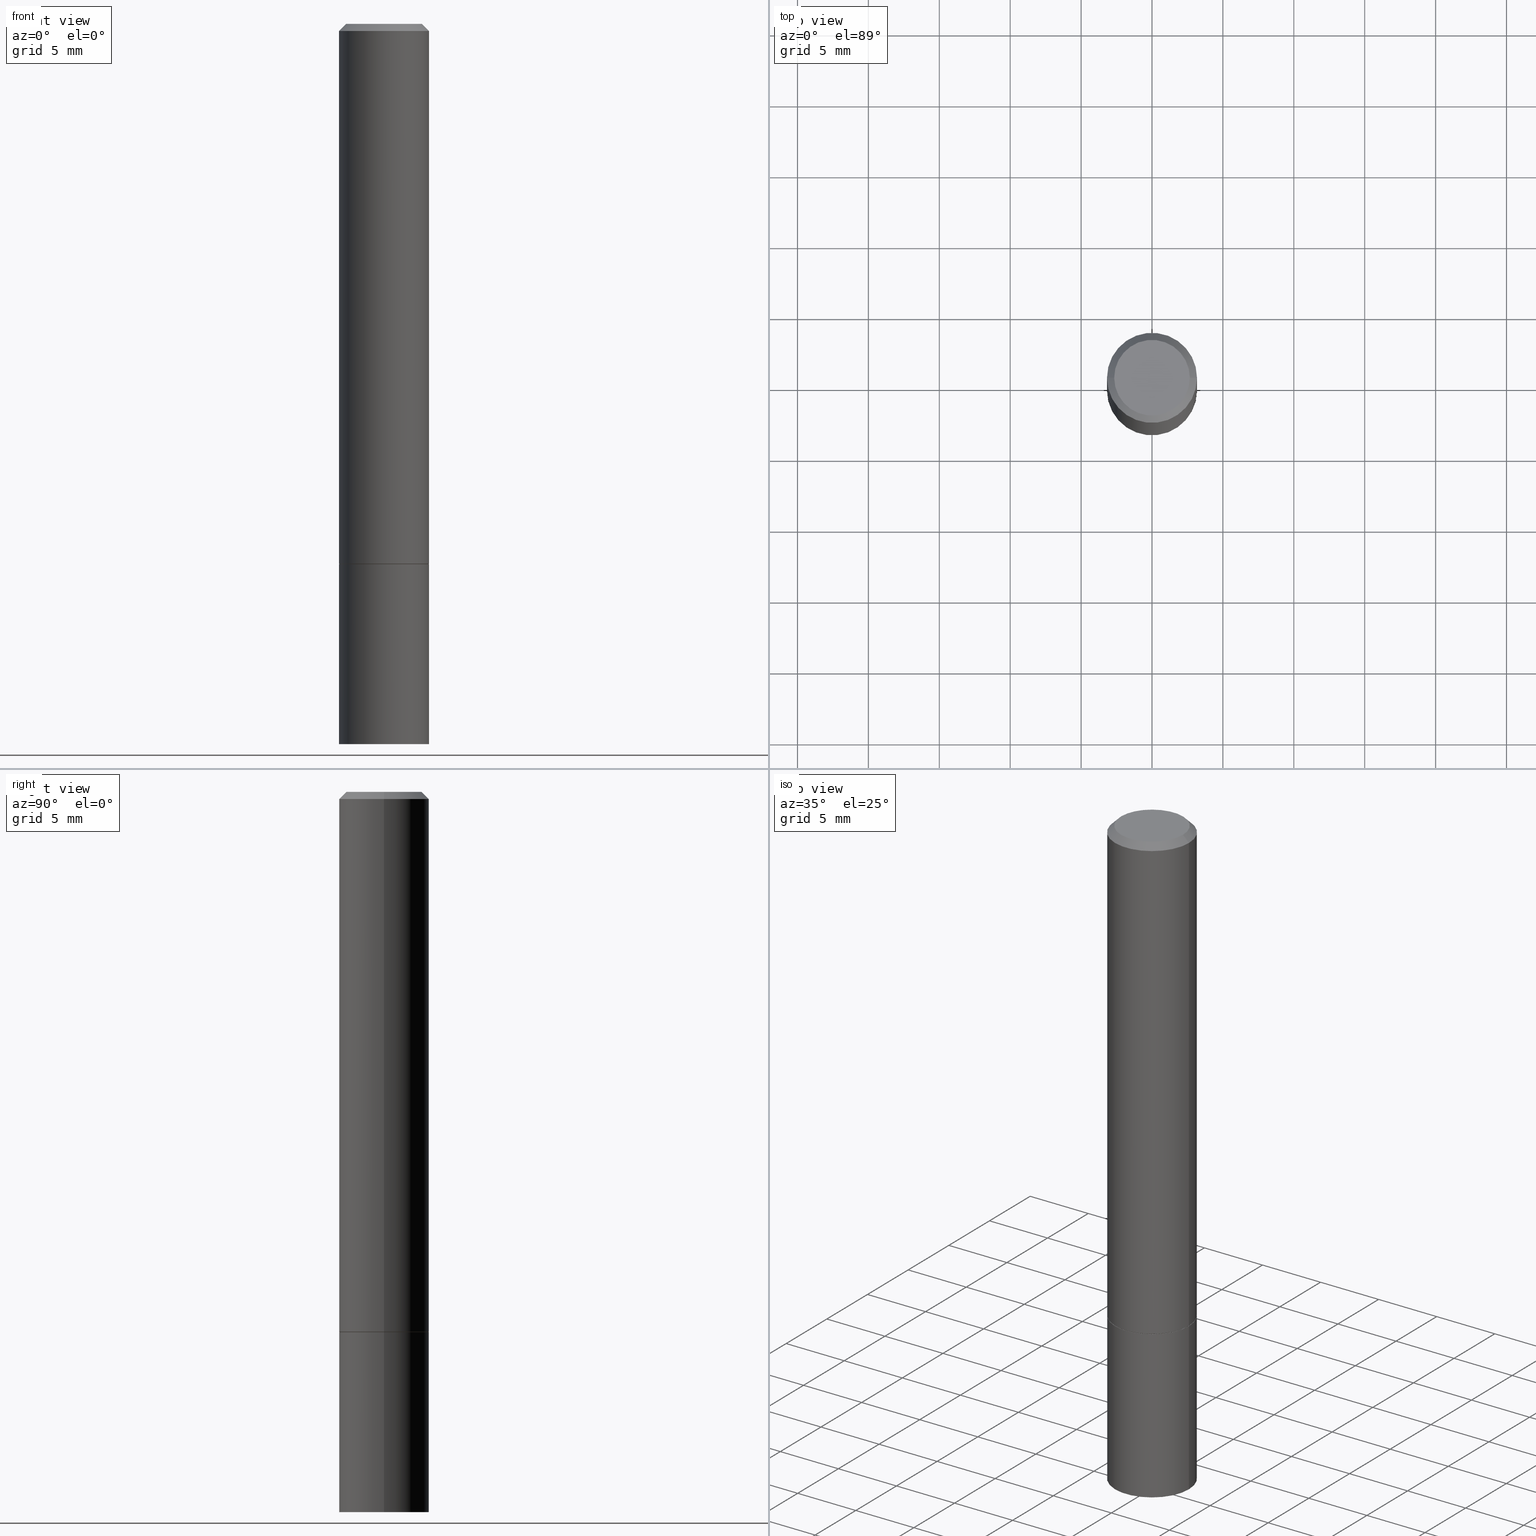
[diagram: canonical four-view strip — front | top / right | iso, engineering-drawing reading convention]
A machine part, canonical four-view strip (front | top / right | iso — engineering-drawing reading convention). The complete STEP part file that produces these views, byte-faithful:
ISO-10303-21;
HEADER;
FILE_DESCRIPTION (( 'STEP AP203' ),
    '1' );
FILE_NAME ('31756.STEP',
    '2024-02-27T13:30:16',
    ( '' ),
    ( '' ),
    'SwSTEP 2.0',
    'SolidWorks 2023',
    '' );
FILE_SCHEMA (( 'CONFIG_CONTROL_DESIGN' ));
ENDSEC;

DATA;
#1 = AXIS2_PLACEMENT_3D ( 'NONE', #285, #280, #168 ) ;
#2 = PERSON_AND_ORGANIZATION ( #38, #261 ) ;
#3 = DIRECTION ( 'NONE',  ( 1.000000000000000000, -6.982962677686270655E-15, 0.000000000000000000 ) ) ;
#4 = LINE ( 'NONE', #116, #185 ) ;
#5 = ADVANCED_FACE ( 'NONE', ( #355 ), #79, .T. ) ;
#6 = FACE_OUTER_BOUND ( 'NONE', #169, .T. ) ;
#7 = ORIENTED_EDGE ( 'NONE', *, *, #37, .T. ) ;
#8 = VECTOR ( 'NONE', #195, 39.37007874015748143 ) ;
#9 = VECTOR ( 'NONE', #136, 39.37007874015748143 ) ;
#10 = VERTEX_POINT ( 'NONE', #288 ) ;
#11 = PERSON_AND_ORGANIZATION_ROLE ( 'design_owner' ) ;
#12 = CIRCLE ( 'NONE', #238, 0.1049999999999998573 ) ;
#13 = AXIS2_PLACEMENT_3D ( 'NONE', #181, #222, #328 ) ;
#14 = DIRECTION ( 'NONE',  ( -1.000000000000000000, 6.982962677686265922E-15, -4.876176775795935793E-29 ) ) ;
#15 = DATE_AND_TIME ( #274, #360 ) ;
#16 = ORIENTED_EDGE ( 'NONE', *, *, #90, .F. ) ;
#17 = COORDINATED_UNIVERSAL_TIME_OFFSET ( 5, 0, .BEHIND. ) ;
#18 = CARTESIAN_POINT ( 'NONE',  ( 4.890937612370273194E-29, -6.982962677686291165E-15, -2.000000000000000000 ) ) ;
#19 = PLANE ( 'NONE',  #323 ) ;
#20 = APPROVAL_DATE_TIME ( #15, #240 ) ;
#21 = FACE_OUTER_BOUND ( 'NONE', #123, .T. ) ;
#22 = LINE ( 'NONE', #62, #9 ) ;
#23 = AXIS2_PLACEMENT_3D ( 'NONE', #277, #227, #250 ) ;
#24 = PERSON_AND_ORGANIZATION ( #38, #261 ) ;
#25 = CARTESIAN_POINT ( 'NONE',  ( 3.665757740471518732E-29, -5.233730526925875170E-15, -1.498999999999999666 ) ) ;
#26 =( LENGTH_UNIT ( ) NAMED_UNIT ( * ) SI_UNIT ( $, .METRE. ) );
#27 = PERSON_AND_ORGANIZATION_ROLE ( 'creator' ) ;
#28 = DIRECTION ( 'NONE',  ( -2.445468806185136597E-29, 3.491481338843145583E-15, 1.000000000000000000 ) ) ;
#29 = CIRCLE ( 'NONE', #70, 0.1250000000000000000 ) ;
#30 = DIRECTION ( 'NONE',  ( 1.000000000000000000, -6.982962677686265922E-15, 4.876176775795935232E-29 ) ) ;
#31 = CC_DESIGN_APPROVAL ( #300, ( #296 ) ) ;
#32 = EDGE_CURVE ( 'NONE', #10, #71, #108, .T. ) ;
#33 = DIRECTION ( 'NONE',  ( 2.438088387897960049E-29, -3.491481338843145188E-15, -1.000000000000000000 ) ) ;
#34 = MANIFOLD_SOLID_BREP ( 'Body-Move/Copy2[1]', #359 ) ;
#35 = DIRECTION ( 'NONE',  ( 1.000000000000000000, -6.982962677686270655E-15, 0.000000000000000000 ) ) ;
#36 = AXIS2_PLACEMENT_3D ( 'NONE', #41, #217, #184 ) ;
#37 = EDGE_CURVE ( 'NONE', #39, #329, #174, .T. ) ;
#38 = PERSON ( 'UNSPECIFIED', 'UNSPECIFIED', 'UNSPECIFIED', ('UNSPECIFIED'), ('UNSPECIFIED'), ('UNSPECIFIED') ) ;
#39 = VERTEX_POINT ( 'NONE', #237 ) ;
#40 = CC_DESIGN_PERSON_AND_ORGANIZATION_ASSIGNMENT ( #44, #305, ( #296 ) ) ;
#41 = CARTESIAN_POINT ( 'NONE',  ( 0.000000000000000000, 0.000000000000000000, 0.000000000000000000 ) ) ;
#42 = MECHANICAL_CONTEXT ( 'NONE', #83, 'mechanical' ) ;
#43 = CC_DESIGN_SECURITY_CLASSIFICATION ( #141, ( #243 ) ) ;
#44 = PERSON_AND_ORGANIZATION ( #38, #261 ) ;
#45 = CALENDAR_DATE ( 2024, 27, 2 ) ;
#46 = ORIENTED_EDGE ( 'NONE', *, *, #92, .T. ) ;
#47 = DIRECTION ( 'NONE',  ( -2.438088387897960049E-29, 3.491481338843145188E-15, 1.000000000000000000 ) ) ;
#48 = APPROVAL_STATUS ( 'not_yet_approved' ) ;
#49 = DIRECTION ( 'NONE',  ( 1.000000000000000000, -6.982962677686270655E-15, 0.000000000000000000 ) ) ;
#50 = CIRCLE ( 'NONE', #304, 0.1250000000000000000 ) ;
#51 = DIRECTION ( 'NONE',  ( -2.445468806185136597E-29, 3.491481338843145583E-15, 1.000000000000000000 ) ) ;
#52 = PERSON_AND_ORGANIZATION ( #38, #261 ) ;
#53 = LINE ( 'NONE', #163, #66 ) ;
#54 = CARTESIAN_POINT ( 'NONE',  ( 0.1250000000000000000, -6.110092342975501516E-15, -1.499999999999999778 ) ) ;
#55 = CYLINDRICAL_SURFACE ( 'NONE', #196, 0.1249999999999999167 ) ;
#56 = VERTEX_POINT ( 'NONE', #54 ) ;
#57 = CONICAL_SURFACE ( 'NONE', #267, 0.1239999999999999991, 0.7853981633975507526 ) ;
#58 = ADVANCED_FACE ( 'NONE', ( #251 ), #322, .T. ) ;
#59 = APPROVAL_STATUS ( 'not_yet_approved' ) ;
#60 = ORIENTED_EDGE ( 'NONE', *, *, #106, .T. ) ;
#61 = CARTESIAN_POINT ( 'NONE',  ( 0.1249999999999998335, -9.273918764983031658E-16, -0.02000000000000002470 ) ) ;
#62 = CARTESIAN_POINT ( 'NONE',  ( 0.1250000000000000000, -8.728703347107833388E-16, 6.095220969744919741E-30 ) ) ;
#63 = DIRECTION ( 'NONE',  ( -2.445468806185136597E-29, 3.491481338843145583E-15, 1.000000000000000000 ) ) ;
#64 = PRODUCT ( '31756', '31756', '', ( #42 ) ) ;
#65 = DIRECTION ( 'NONE',  ( 1.000000000000000000, -6.982962677686265922E-15, 4.876176775795935232E-29 ) ) ;
#66 = VECTOR ( 'NONE', #279, 39.37007874015748143 ) ;
#67 = EDGE_CURVE ( 'NONE', #186, #349, #313, .T. ) ;
#68 = CC_DESIGN_PERSON_AND_ORGANIZATION_ASSIGNMENT ( #24, #283, ( #243 ) ) ;
#69 = DIRECTION ( 'NONE',  ( 1.000000000000000000, -6.982962677686266711E-15, 0.000000000000000000 ) ) ;
#70 = AXIS2_PLACEMENT_3D ( 'NONE', #307, #81, #78 ) ;
#71 = VERTEX_POINT ( 'NONE', #204 ) ;
#72 =( NAMED_UNIT ( * ) PLANE_ANGLE_UNIT ( ) SI_UNIT ( $, .RADIAN. ) );
#73 = APPROVAL_STATUS ( 'not_yet_approved' ) ;
#74 = ORIENTED_EDGE ( 'NONE', *, *, #76, .T. ) ;
#75 = AXIS2_PLACEMENT_3D ( 'NONE', #317, #63, #3 ) ;
#76 = EDGE_CURVE ( 'NONE', #10, #39, #159, .T. ) ;
#77 = FACE_OUTER_BOUND ( 'NONE', #363, .T. ) ;
#78 = DIRECTION ( 'NONE',  ( 1.000000000000000000, -6.982962677686270655E-15, 0.000000000000000000 ) ) ;
#79 = CYLINDRICAL_SURFACE ( 'NONE', #298, 0.1250000000000000000 ) ;
#80 = VECTOR ( 'NONE', #133, 39.37007874015748143 ) ;
#81 = DIRECTION ( 'NONE',  ( -2.445468806185136597E-29, 3.491481338843145583E-15, 1.000000000000000000 ) ) ;
#82 = FACE_OUTER_BOUND ( 'NONE', #132, .T. ) ;
#83 = APPLICATION_CONTEXT ( 'configuration controlled 3d designs of mechanical parts and assemblies' ) ;
#84 = FACE_OUTER_BOUND ( 'NONE', #202, .T. ) ;
#85 = ORIENTED_EDGE ( 'NONE', *, *, #92, .F. ) ;
#86 = ADVANCED_FACE ( 'NONE', ( #21 ), #306, .T. ) ;
#87 = DIRECTION ( 'NONE',  ( 1.000000000000000000, -6.982962677686270655E-15, 0.000000000000000000 ) ) ;
#88 = ORIENTED_EDGE ( 'NONE', *, *, #67, .T. ) ;
#89 = CARTESIAN_POINT ( 'NONE',  ( 0.000000000000000000, 0.000000000000000000, 0.000000000000000000 ) ) ;
#90 = EDGE_CURVE ( 'NONE', #258, #346, #53, .T. ) ;
#91 = DIRECTION ( 'NONE',  ( -2.445468806185136597E-29, 3.491481338843145583E-15, 1.000000000000000000 ) ) ;
#92 = EDGE_CURVE ( 'NONE', #349, #138, #198, .T. ) ;
#93 = CARTESIAN_POINT ( 'NONE',  ( 0.000000000000000000, 0.000000000000000000, 0.000000000000000000 ) ) ;
#94 = ADVANCED_FACE ( 'NONE', ( #82 ), #272, .T. ) ;
#95 = EDGE_CURVE ( 'NONE', #303, #258, #242, .T. ) ;
#96 = ORIENTED_EDGE ( 'NONE', *, *, #119, .T. ) ;
#97 = APPROVAL_ROLE ( '' ) ;
#98 = ORIENTED_EDGE ( 'NONE', *, *, #95, .T. ) ;
#99 = ADVANCED_BREP_SHAPE_REPRESENTATION ( '31756', ( #34, #150, #13 ), #214 ) ;
#100 = ORIENTED_EDGE ( 'NONE', *, *, #324, .T. ) ;
#101 = DIRECTION ( 'NONE',  ( -1.000000000000000000, 6.982962677686265922E-15, -4.876176775795935793E-29 ) ) ;
#102 =( NAMED_UNIT ( * ) SI_UNIT ( $, .STERADIAN. ) SOLID_ANGLE_UNIT ( ) );
#103 = APPLICATION_PROTOCOL_DEFINITION ( 'international standard', 'config_control_design', 1994, #187 ) ;
#104 = DIRECTION ( 'NONE',  ( 1.000000000000000000, -6.982962677686270655E-15, 0.000000000000000000 ) ) ;
#105 = CARTESIAN_POINT ( 'NONE',  ( 3.668203209277704335E-29, -5.237222008264717388E-15, -1.499999999999999778 ) ) ;
#106 = EDGE_CURVE ( 'NONE', #232, #346, #287, .T. ) ;
#107 = DIRECTION ( 'NONE',  ( -2.445468806185136597E-29, 3.491481338843145583E-15, 1.000000000000000000 ) ) ;
#108 = CIRCLE ( 'NONE', #333, 0.1239999999999999991 ) ;
#109 = CONICAL_SURFACE ( 'NONE', #321, 0.1249999999999998335, 0.7853981633974471688 ) ;
#110 = DIRECTION ( 'NONE',  ( 0.7071067811866199593, -2.468850131083015945E-15, 0.7071067811864750752 ) ) ;
#111 = ORIENTED_EDGE ( 'NONE', *, *, #95, .F. ) ;
#112 = CARTESIAN_POINT ( 'NONE',  ( 3.668203209277703774E-29, -5.237222008264716599E-15, -1.499999999999999556 ) ) ;
#113 = ORIENTED_EDGE ( 'NONE', *, *, #226, .T. ) ;
#114 = CC_DESIGN_APPROVAL ( #240, ( #243 ) ) ;
#115 = FACE_OUTER_BOUND ( 'NONE', #350, .T. ) ;
#116 = CARTESIAN_POINT ( 'NONE',  ( 0.1249999999999999167, -8.728703347107827472E-16, 6.095220969744915537E-30 ) ) ;
#117 = CC_DESIGN_APPROVAL ( #126, ( #141 ) ) ;
#118 = DIRECTION ( 'NONE',  ( -1.000000000000000000, 6.982962677686266711E-15, 0.000000000000000000 ) ) ;
#119 = EDGE_CURVE ( 'NONE', #349, #186, #320, .T. ) ;
#120 = DESIGN_CONTEXT ( 'detailed design', #187, 'design' ) ;
#121 = ORIENTED_EDGE ( 'NONE', *, *, #226, .F. ) ;
#122 = CYLINDRICAL_SURFACE ( 'NONE', #36, 0.1249999999999999167 ) ;
#123 = EDGE_LOOP ( 'NONE', ( #88, #46, #188, #165 ) ) ;
#124 = ADVANCED_FACE ( 'NONE', ( #176 ), #57, .T. ) ;
#125 = ORIENTED_EDGE ( 'NONE', *, *, #352, .T. ) ;
#126 = APPROVAL ( #59, 'UNSPECIFIED' ) ;
#127 = ORIENTED_EDGE ( 'NONE', *, *, #153, .T. ) ;
#128 = DATE_AND_TIME ( #218, #152 ) ;
#129 = DIRECTION ( 'NONE',  ( -2.445468806185136597E-29, 3.491481338843145583E-15, 1.000000000000000000 ) ) ;
#130 = CARTESIAN_POINT ( 'NONE',  ( 3.668203209277703774E-29, -5.237222008264716599E-15, -1.499999999999999556 ) ) ;
#131 = PLANE ( 'NONE',  #347 ) ;
#132 = EDGE_LOOP ( 'NONE', ( #245, #301, #366, #100 ) ) ;
#133 = DIRECTION ( 'NONE',  ( 0.7071067811865466846, -7.319954787623252890E-15, -0.7071067811865483499 ) ) ;
#134 = DIRECTION ( 'NONE',  ( 1.000000000000000000, -6.982962677686265922E-15, 4.876176775795935793E-29 ) ) ;
#135 = CARTESIAN_POINT ( 'NONE',  ( -0.1239999999999999991, -4.356149015922192375E-15, -1.499999999999999556 ) ) ;
#136 = DIRECTION ( 'NONE',  ( -2.445468806185136877E-29, 3.491481338843145188E-15, 1.000000000000000000 ) ) ;
#137 = DATE_AND_TIME ( #236, #327 ) ;
#138 = VERTEX_POINT ( 'NONE', #270 ) ;
#139 = PERSON_AND_ORGANIZATION ( #38, #261 ) ;
#140 = DIRECTION ( 'NONE',  ( 1.000000000000000000, -6.982962677686270655E-15, 0.000000000000000000 ) ) ;
#141 = SECURITY_CLASSIFICATION ( '', '', #260 ) ;
#142 = PRODUCT_RELATED_PRODUCT_CATEGORY ( 'detail', '', ( #64 ) ) ;
#143 = CARTESIAN_POINT ( 'NONE',  ( 3.668203209277703774E-29, -5.237222008264716599E-15, -1.499999999999999556 ) ) ;
#144 = UNCERTAINTY_MEASURE_WITH_UNIT (LENGTH_MEASURE( 1.000000000000000082E-05 ), #248, 'distance_accuracy_value', 'NONE');
#145 = AXIS2_PLACEMENT_3D ( 'NONE', #18, #337, #87 ) ;
#146 = CARTESIAN_POINT ( 'NONE',  ( 4.890937612370279289E-31, -6.982962677686299005E-17, -0.02000000000000002470 ) ) ;
#147 = DIMENSIONAL_EXPONENTS ( 1.000000000000000000, 0.000000000000000000, 0.000000000000000000, 0.000000000000000000, 0.000000000000000000, 0.000000000000000000, 0.000000000000000000 ) ;
#148 = ORIENTED_EDGE ( 'NONE', *, *, #348, .T. ) ;
#149 = ADVANCED_FACE ( 'NONE', ( #6 ), #122, .T. ) ;
#150 = MANIFOLD_SOLID_BREP ( 'Body-Move/Copy2[2]', #254 ) ;
#151 = PERSON_AND_ORGANIZATION ( #38, #261 ) ;
#152 = LOCAL_TIME ( 8, 30, 16.00000000000000000, #193 ) ;
#153 = EDGE_CURVE ( 'NONE', #258, #303, #12, .T. ) ;
#154 = APPROVAL_ROLE ( '' ) ;
#155 = EDGE_CURVE ( 'NONE', #138, #56, #29, .T. ) ;
#156 = DATE_AND_TIME ( #45, #273 ) ;
#157 = ORIENTED_EDGE ( 'NONE', *, *, #155, .F. ) ;
#158 = COORDINATED_UNIVERSAL_TIME_OFFSET ( 5, 0, .BEHIND. ) ;
#159 = LINE ( 'NONE', #135, #8 ) ;
#160 = AXIS2_PLACEMENT_3D ( 'NONE', #319, #212, #69 ) ;
#161 = AXIS2_PLACEMENT_3D ( 'NONE', #293, #33, #101 ) ;
#162 = DIRECTION ( 'NONE',  ( 1.000000000000000000, -6.982962677686266711E-15, 4.876176775795935793E-29 ) ) ;
#163 = CARTESIAN_POINT ( 'NONE',  ( -0.1249999999999998335, 8.030407079339191532E-16, -0.02000000000000002470 ) ) ;
#164 = COORDINATED_UNIVERSAL_TIME_OFFSET ( 5, 0, .BEHIND. ) ;
#165 = ORIENTED_EDGE ( 'NONE', *, *, #361, .F. ) ;
#166 = DIRECTION ( 'NONE',  ( -1.000000000000000000, 6.982962677686266711E-15, 0.000000000000000000 ) ) ;
#167 = DIRECTION ( 'NONE',  ( 1.000000000000000000, -6.982962677686266711E-15, 4.876176775795935793E-29 ) ) ;
#168 = DIRECTION ( 'NONE',  ( 1.000000000000000000, -6.982962677686266711E-15, 0.000000000000000000 ) ) ;
#169 = EDGE_LOOP ( 'NONE', ( #332, #7, #331, #351 ) ) ;
#170 = LENGTH_MEASURE_WITH_UNIT ( LENGTH_MEASURE( 0.02539999999999999897 ), #26 );
#171 = ADVANCED_FACE ( 'NONE', ( #282 ), #334, .F. ) ;
#172 = DIRECTION ( 'NONE',  ( -2.445468806185136597E-29, 3.491481338843145583E-15, 1.000000000000000000 ) ) ;
#173 = CARTESIAN_POINT ( 'NONE',  ( 3.665757740471518732E-29, -5.233730526925875170E-15, -1.498999999999999666 ) ) ;
#174 = CIRCLE ( 'NONE', #326, 0.1250000000000000000 ) ;
#175 = APPROVAL_PERSON_ORGANIZATION ( #139, #126, #203 ) ;
#176 = FACE_OUTER_BOUND ( 'NONE', #314, .T. ) ;
#177 = AXIS2_PLACEMENT_3D ( 'NONE', #146, #268, #118 ) ;
#178 = EDGE_CURVE ( 'NONE', #56, #138, #50, .T. ) ;
#179 = ADVANCED_FACE ( 'NONE', ( #330 ), #55, .T. ) ;
#180 = ORIENTED_EDGE ( 'NONE', *, *, #67, .F. ) ;
#181 = CARTESIAN_POINT ( 'NONE',  ( 0.000000000000000000, 0.000000000000000000, 0.000000000000000000 ) ) ;
#182 = ORIENTED_EDGE ( 'NONE', *, *, #106, .F. ) ;
#183 = CC_DESIGN_DATE_AND_TIME_ASSIGNMENT ( #156, #276, ( #296 ) ) ;
#184 = DIRECTION ( 'NONE',  ( 1.000000000000000000, -6.982962677686266711E-15, 4.876176775795935793E-29 ) ) ;
#185 = VECTOR ( 'NONE', #210, 39.37007874015748143 ) ;
#186 = VERTEX_POINT ( 'NONE', #278 ) ;
#187 = APPLICATION_CONTEXT ( 'configuration controlled 3d designs of mechanical parts and assemblies' ) ;
#188 = ORIENTED_EDGE ( 'NONE', *, *, #178, .F. ) ;
#189 = DIRECTION ( 'NONE',  ( 2.438088387897960049E-29, -3.491481338843145188E-15, -1.000000000000000000 ) ) ;
#190 = APPLICATION_PROTOCOL_DEFINITION ( 'international standard', 'config_control_design', 1994, #83 ) ;
#191 = EDGE_LOOP ( 'NONE', ( #127, #98 ) ) ;
#192 = CARTESIAN_POINT ( 'NONE',  ( 7.332110811570569396E-16, 0.1049999999999998573, -3.666055405785298010E-16 ) ) ;
#193 = COORDINATED_UNIVERSAL_TIME_OFFSET ( 5, 0, .BEHIND. ) ;
#194 = ADVANCED_FACE ( 'NONE', ( #77 ), #131, .T. ) ;
#195 = DIRECTION ( 'NONE',  ( -0.7071067811866199593, 7.493145998870616062E-15, 0.7071067811864750752 ) ) ;
#196 = AXIS2_PLACEMENT_3D ( 'NONE', #89, #129, #162 ) ;
#197 = CIRCLE ( 'NONE', #345, 0.1239999999999999991 ) ;
#198 = LINE ( 'NONE', #335, #228 ) ;
#199 = ADVANCED_FACE ( 'NONE', ( #115 ), #19, .F. ) ;
#200 = CARTESIAN_POINT ( 'NONE',  ( 4.890937612370279289E-31, -6.982962677686299005E-17, -0.02000000000000002470 ) ) ;
#201 = COORDINATED_UNIVERSAL_TIME_OFFSET ( 5, 0, .BEHIND. ) ;
#202 = EDGE_LOOP ( 'NONE', ( #111, #148, #60, #16 ) ) ;
#203 = APPROVAL_ROLE ( '' ) ;
#204 = CARTESIAN_POINT ( 'NONE',  ( 0.1239999999999999991, -6.103109380297813924E-15, -1.499999999999999556 ) ) ;
#205 = CIRCLE ( 'NONE', #219, 0.1250000000000000000 ) ;
#206 = ORIENTED_EDGE ( 'NONE', *, *, #309, .F. ) ;
#207 = CARTESIAN_POINT ( 'NONE',  ( 0.1250000000000000000, -6.106600861636658508E-15, -1.498999999999999666 ) ) ;
#208 = PERSON_AND_ORGANIZATION ( #38, #261 ) ;
#209 = PLANE ( 'NONE',  #161 ) ;
#210 = DIRECTION ( 'NONE',  ( -2.445468806185136877E-29, 3.491481338843145188E-15, 1.000000000000000000 ) ) ;
#211 = LOCAL_TIME ( 8, 30, 16.00000000000000000, #201 ) ;
#212 = DIRECTION ( 'NONE',  ( -2.445468806185136597E-29, 3.491481338843145583E-15, 1.000000000000000000 ) ) ;
#213 = CC_DESIGN_DATE_AND_TIME_ASSIGNMENT ( #137, #362, ( #141 ) ) ;
#214 =( GEOMETRIC_REPRESENTATION_CONTEXT ( 3 ) GLOBAL_UNCERTAINTY_ASSIGNED_CONTEXT ( ( #144 ) ) GLOBAL_UNIT_ASSIGNED_CONTEXT ( ( #248, #72, #102 ) ) REPRESENTATION_CONTEXT ( 'NONE', 'WORKASPACE' ) );
#215 = ORIENTED_EDGE ( 'NONE', *, *, #76, .F. ) ;
#216 = CC_DESIGN_PERSON_AND_ORGANIZATION_ASSIGNMENT ( #2, #340, ( #141 ) ) ;
#217 = DIRECTION ( 'NONE',  ( -2.445468806185136597E-29, 3.491481338843145583E-15, 1.000000000000000000 ) ) ;
#218 = CALENDAR_DATE ( 2024, 27, 2 ) ;
#219 = AXIS2_PLACEMENT_3D ( 'NONE', #173, #286, #262 ) ;
#220 = EDGE_LOOP ( 'NONE', ( #338, #358 ) ) ;
#221 = DIRECTION ( 'NONE',  ( 1.000000000000000000, -6.982962677686270655E-15, 0.000000000000000000 ) ) ;
#222 = DIRECTION ( 'NONE',  ( 0.000000000000000000, 0.000000000000000000, 1.000000000000000000 ) ) ;
#223 = PERSON_AND_ORGANIZATION ( #38, #261 ) ;
#224 = ORIENTED_EDGE ( 'NONE', *, *, #309, .T. ) ;
#225 = DIRECTION ( 'NONE',  ( 1.000000000000000000, -6.982962677686270655E-15, 0.000000000000000000 ) ) ;
#226 = EDGE_CURVE ( 'NONE', #71, #329, #354, .T. ) ;
#227 = DIRECTION ( 'NONE',  ( -2.445468806185136597E-29, 3.491481338843145583E-15, 1.000000000000000000 ) ) ;
#228 = VECTOR ( 'NONE', #255, 39.37007874015748143 ) ;
#229 = APPROVAL_PERSON_ORGANIZATION ( #223, #300, #97 ) ;
#230 = CARTESIAN_POINT ( 'NONE',  ( 0.1249999999999998335, -9.273918764983031658E-16, -0.02000000000000002470 ) ) ;
#231 = CALENDAR_DATE ( 2024, 27, 2 ) ;
#232 = VERTEX_POINT ( 'NONE', #230 ) ;
#233 = ADVANCED_FACE ( 'NONE', ( #84 ), #109, .T. ) ;
#234 = APPROVAL_DATE_TIME ( #311, #126 ) ;
#235 = DIRECTION ( 'NONE',  ( -2.445468806185136597E-29, 3.491481338843145583E-15, 1.000000000000000000 ) ) ;
#236 = CALENDAR_DATE ( 2024, 27, 2 ) ;
#237 = CARTESIAN_POINT ( 'NONE',  ( -0.1250000000000000000, -1.763601657151241635E-15, -1.498999999999999666 ) ) ;
#238 = AXIS2_PLACEMENT_3D ( 'NONE', #299, #318, #65 ) ;
#239 = CARTESIAN_POINT ( 'NONE',  ( -0.1049999999999998573, 7.681258945454880957E-16, -5.249639473182158869E-30 ) ) ;
#240 = APPROVAL ( #73, 'UNSPECIFIED' ) ;
#241 = CARTESIAN_POINT ( 'NONE',  ( 0.1049999999999998573, -8.238720831321564811E-16, 5.444276250344142358E-30 ) ) ;
#242 = CIRCLE ( 'NONE', #353, 0.1049999999999998573 ) ;
#243 = PRODUCT_DEFINITION_FORMATION_WITH_SPECIFIED_SOURCE ( 'ANY', '', #64, .NOT_KNOWN. ) ;
#244 = EDGE_CURVE ( 'NONE', #329, #39, #205, .T. ) ;
#245 = ORIENTED_EDGE ( 'NONE', *, *, #348, .F. ) ;
#246 = ORIENTED_EDGE ( 'NONE', *, *, #32, .F. ) ;
#247 = ORIENTED_EDGE ( 'NONE', *, *, #32, .T. ) ;
#248 =( CONVERSION_BASED_UNIT ( 'INCH', #170 ) LENGTH_UNIT ( ) NAMED_UNIT ( #147 ) );
#249 = CARTESIAN_POINT ( 'NONE',  ( 8.728703347108321496E-16, 0.1249999999999930195, -2.000000000000000444 ) ) ;
#250 = DIRECTION ( 'NONE',  ( 1.000000000000000000, -6.982962677686266711E-15, 4.876176775795935793E-29 ) ) ;
#251 = FACE_OUTER_BOUND ( 'NONE', #269, .T. ) ;
#252 = CARTESIAN_POINT ( 'NONE',  ( -0.1249999999999999167, 8.881784197001246407E-16, -6.148668862818628023E-30 ) ) ;
#253 = CARTESIAN_POINT ( 'NONE',  ( 0.1239999999999999991, -6.103109380297813924E-15, -1.499999999999999556 ) ) ;
#254 = CLOSED_SHELL ( 'NONE', ( #124, #179, #233, #94, #149, #58, #199, #171 ) ) ;
#255 = DIRECTION ( 'NONE',  ( -2.445468806185136877E-29, 3.491481338843145188E-15, 1.000000000000000000 ) ) ;
#256 = CARTESIAN_POINT ( 'NONE',  ( -0.1250000000000000000, -5.221913923275378650E-15, -2.000000000000000000 ) ) ;
#257 = EDGE_LOOP ( 'NONE', ( #85, #96, #365, #157 ) ) ;
#258 = VERTEX_POINT ( 'NONE', #239 ) ;
#259 = LINE ( 'NONE', #61, #80 ) ;
#260 = SECURITY_CLASSIFICATION_LEVEL ( 'unclassified' ) ;
#261 = ORGANIZATION ( 'UNSPECIFIED', 'UNSPECIFIED', '' ) ;
#262 = DIRECTION ( 'NONE',  ( 1.000000000000000000, -6.982962677686270655E-15, 0.000000000000000000 ) ) ;
#263 = CARTESIAN_POINT ( 'NONE',  ( 3.668203209277704335E-29, -5.237222008264717388E-15, -1.499999999999999778 ) ) ;
#264 = ADVANCED_FACE ( 'NONE', ( #341 ), #209, .F. ) ;
#265 = DIRECTION ( 'NONE',  ( -2.445468806185136597E-29, 3.491481338843145583E-15, 1.000000000000000000 ) ) ;
#266 = EDGE_CURVE ( 'NONE', #329, #232, #4, .T. ) ;
#267 = AXIS2_PLACEMENT_3D ( 'NONE', #143, #265, #35 ) ;
#268 = DIRECTION ( 'NONE',  ( 2.445468806185136597E-29, -3.491481338843145583E-15, -1.000000000000000000 ) ) ;
#269 = EDGE_LOOP ( 'NONE', ( #215, #247, #113, #336 ) ) ;
#270 = CARTESIAN_POINT ( 'NONE',  ( -0.1250000000000000000, -5.221913923275378650E-15, -1.499999999999999778 ) ) ;
#271 = ORIENTED_EDGE ( 'NONE', *, *, #244, .T. ) ;
#272 = CONICAL_SURFACE ( 'NONE', #177, 0.1249999999999998335, 0.7853981633974471688 ) ;
#273 = LOCAL_TIME ( 8, 30, 16.00000000000000000, #158 ) ;
#274 = CALENDAR_DATE ( 2024, 27, 2 ) ;
#275 = AXIS2_PLACEMENT_3D ( 'NONE', #192, #357, #14 ) ;
#276 = DATE_TIME_ROLE ( 'creation_date' ) ;
#277 = CARTESIAN_POINT ( 'NONE',  ( 0.000000000000000000, 0.000000000000000000, 0.000000000000000000 ) ) ;
#278 = CARTESIAN_POINT ( 'NONE',  ( 0.1250000000000000000, -7.855833012397075293E-15, -2.000000000000000000 ) ) ;
#279 = DIRECTION ( 'NONE',  ( -0.7071067811865466846, 2.468850131082247989E-15, -0.7071067811865483499 ) ) ;
#280 = DIRECTION ( 'NONE',  ( -2.445468806185136597E-29, 3.491481338843145583E-15, 1.000000000000000000 ) ) ;
#281 = CC_DESIGN_PERSON_AND_ORGANIZATION_ASSIGNMENT ( #208, #27, ( #243 ) ) ;
#282 = FACE_OUTER_BOUND ( 'NONE', #191, .T. ) ;
#283 = PERSON_AND_ORGANIZATION_ROLE ( 'design_supplier' ) ;
#284 = ORIENTED_EDGE ( 'NONE', *, *, #266, .F. ) ;
#285 = CARTESIAN_POINT ( 'NONE',  ( 4.890937612370279289E-31, -6.982962677686299005E-17, -0.02000000000000002470 ) ) ;
#286 = DIRECTION ( 'NONE',  ( -2.445468806185136597E-29, 3.491481338843145583E-15, 1.000000000000000000 ) ) ;
#287 = CIRCLE ( 'NONE', #160, 0.1249999999999998335 ) ;
#288 = CARTESIAN_POINT ( 'NONE',  ( -0.1239999999999999991, -4.350850561573970762E-15, -1.499999999999999556 ) ) ;
#289 = VECTOR ( 'NONE', #316, 39.37007874015748143 ) ;
#290 = DIRECTION ( 'NONE',  ( -2.445468806185136597E-29, 3.491481338843145583E-15, 1.000000000000000000 ) ) ;
#291 = CARTESIAN_POINT ( 'NONE',  ( -0.1249999999999998335, 8.030407079339191532E-16, -0.02000000000000002470 ) ) ;
#292 = APPROVAL_PERSON_ORGANIZATION ( #52, #240, #154 ) ;
#293 = CARTESIAN_POINT ( 'NONE',  ( 8.728703347108198236E-16, 0.1249999999999947542, -1.500000000000000444 ) ) ;
#294 = CIRCLE ( 'NONE', #1, 0.1249999999999998335 ) ;
#295 = ORIENTED_EDGE ( 'NONE', *, *, #119, .F. ) ;
#296 = PRODUCT_DEFINITION ( 'UNKNOWN', '', #243, #120 ) ;
#297 = ORIENTED_EDGE ( 'NONE', *, *, #244, .F. ) ;
#298 = AXIS2_PLACEMENT_3D ( 'NONE', #312, #107, #167 ) ;
#299 = CARTESIAN_POINT ( 'NONE',  ( 0.000000000000000000, 0.000000000000000000, 0.000000000000000000 ) ) ;
#300 = APPROVAL ( #48, 'UNSPECIFIED' ) ;
#301 = ORIENTED_EDGE ( 'NONE', *, *, #153, .F. ) ;
#302 = DIRECTION ( 'NONE',  ( -1.000000000000000000, 6.982962677686265922E-15, -4.876176775795935793E-29 ) ) ;
#303 = VERTEX_POINT ( 'NONE', #241 ) ;
#304 = AXIS2_PLACEMENT_3D ( 'NONE', #263, #51, #221 ) ;
#305 = PERSON_AND_ORGANIZATION_ROLE ( 'creator' ) ;
#306 = CYLINDRICAL_SURFACE ( 'NONE', #23, 0.1250000000000000000 ) ;
#307 = CARTESIAN_POINT ( 'NONE',  ( 3.668203209277704335E-29, -5.237222008264717388E-15, -1.499999999999999778 ) ) ;
#308 = EDGE_LOOP ( 'NONE', ( #271, #125, #182, #284 ) ) ;
#309 = EDGE_CURVE ( 'NONE', #71, #10, #197, .T. ) ;
#310 = DIRECTION ( 'NONE',  ( 2.445468806185136597E-29, -3.491481338843145583E-15, -1.000000000000000000 ) ) ;
#311 = DATE_AND_TIME ( #231, #211 ) ;
#312 = CARTESIAN_POINT ( 'NONE',  ( 0.000000000000000000, 0.000000000000000000, 0.000000000000000000 ) ) ;
#313 = CIRCLE ( 'NONE', #145, 0.1250000000000000000 ) ;
#314 = EDGE_LOOP ( 'NONE', ( #224, #74, #297, #121 ) ) ;
#315 = VECTOR ( 'NONE', #110, 39.37007874015748143 ) ;
#316 = DIRECTION ( 'NONE',  ( -2.445468806185136877E-29, 3.491481338843145188E-15, 1.000000000000000000 ) ) ;
#317 = CARTESIAN_POINT ( 'NONE',  ( 4.890937612370273194E-29, -6.982962677686291165E-15, -2.000000000000000000 ) ) ;
#318 = DIRECTION ( 'NONE',  ( -2.445468806185136597E-29, 3.491481338843145583E-15, 1.000000000000000000 ) ) ;
#319 = CARTESIAN_POINT ( 'NONE',  ( 4.890937612370279289E-31, -6.982962677686299005E-17, -0.02000000000000002470 ) ) ;
#320 = CIRCLE ( 'NONE', #75, 0.1250000000000000000 ) ;
#321 = AXIS2_PLACEMENT_3D ( 'NONE', #200, #310, #166 ) ;
#322 = CONICAL_SURFACE ( 'NONE', #344, 0.1239999999999999991, 0.7853981633975507526 ) ;
#323 = AXIS2_PLACEMENT_3D ( 'NONE', #105, #47, #134 ) ;
#324 = EDGE_CURVE ( 'NONE', #346, #232, #294, .T. ) ;
#325 = APPROVAL_DATE_TIME ( #128, #300 ) ;
#326 = AXIS2_PLACEMENT_3D ( 'NONE', #25, #28, #49 ) ;
#327 = LOCAL_TIME ( 8, 30, 16.00000000000000000, #164 ) ;
#328 = DIRECTION ( 'NONE',  ( 1.000000000000000000, 0.000000000000000000, 0.000000000000000000 ) ) ;
#329 = VERTEX_POINT ( 'NONE', #207 ) ;
#330 = FACE_OUTER_BOUND ( 'NONE', #308, .T. ) ;
#331 = ORIENTED_EDGE ( 'NONE', *, *, #266, .T. ) ;
#332 = ORIENTED_EDGE ( 'NONE', *, *, #352, .F. ) ;
#333 = AXIS2_PLACEMENT_3D ( 'NONE', #130, #290, #104 ) ;
#334 = PLANE ( 'NONE',  #275 ) ;
#335 = CARTESIAN_POINT ( 'NONE',  ( -0.1250000000000000000, 8.881784197001252323E-16, -6.148668862818632227E-30 ) ) ;
#336 = ORIENTED_EDGE ( 'NONE', *, *, #37, .F. ) ;
#337 = DIRECTION ( 'NONE',  ( -2.445468806185136597E-29, 3.491481338843145583E-15, 1.000000000000000000 ) ) ;
#338 = ORIENTED_EDGE ( 'NONE', *, *, #178, .T. ) ;
#339 = LINE ( 'NONE', #252, #289 ) ;
#340 = PERSON_AND_ORGANIZATION_ROLE ( 'classification_officer' ) ;
#341 = FACE_OUTER_BOUND ( 'NONE', #220, .T. ) ;
#342 = CARTESIAN_POINT ( 'NONE',  ( 3.668203209277703774E-29, -5.237222008264716599E-15, -1.499999999999999556 ) ) ;
#343 = PRODUCT_DEFINITION_SHAPE ( 'NONE', 'NONE',  #296 ) ;
#344 = AXIS2_PLACEMENT_3D ( 'NONE', #112, #235, #140 ) ;
#345 = AXIS2_PLACEMENT_3D ( 'NONE', #342, #91, #225 ) ;
#346 = VERTEX_POINT ( 'NONE', #291 ) ;
#347 = AXIS2_PLACEMENT_3D ( 'NONE', #249, #189, #302 ) ;
#348 = EDGE_CURVE ( 'NONE', #303, #232, #259, .T. ) ;
#349 = VERTEX_POINT ( 'NONE', #256 ) ;
#350 = EDGE_LOOP ( 'NONE', ( #206, #246 ) ) ;
#351 = ORIENTED_EDGE ( 'NONE', *, *, #324, .F. ) ;
#352 = EDGE_CURVE ( 'NONE', #39, #346, #339, .T. ) ;
#353 = AXIS2_PLACEMENT_3D ( 'NONE', #93, #172, #30 ) ;
#354 = LINE ( 'NONE', #253, #315 ) ;
#355 = FACE_OUTER_BOUND ( 'NONE', #257, .T. ) ;
#356 = CC_DESIGN_PERSON_AND_ORGANIZATION_ASSIGNMENT ( #151, #11, ( #64 ) ) ;
#357 = DIRECTION ( 'NONE',  ( 2.438088387897960049E-29, -3.491481338843145188E-15, -1.000000000000000000 ) ) ;
#358 = ORIENTED_EDGE ( 'NONE', *, *, #155, .T. ) ;
#359 = CLOSED_SHELL ( 'NONE', ( #86, #194, #264, #5 ) ) ;
#360 = LOCAL_TIME ( 8, 30, 16.00000000000000000, #17 ) ;
#361 = EDGE_CURVE ( 'NONE', #186, #56, #22, .T. ) ;
#362 = DATE_TIME_ROLE ( 'classification_date' ) ;
#363 = EDGE_LOOP ( 'NONE', ( #180, #295 ) ) ;
#364 = SHAPE_DEFINITION_REPRESENTATION ( #343, #99 ) ;
#365 = ORIENTED_EDGE ( 'NONE', *, *, #361, .T. ) ;
#366 = ORIENTED_EDGE ( 'NONE', *, *, #90, .T. ) ;
ENDSEC;
END-ISO-10303-21;
